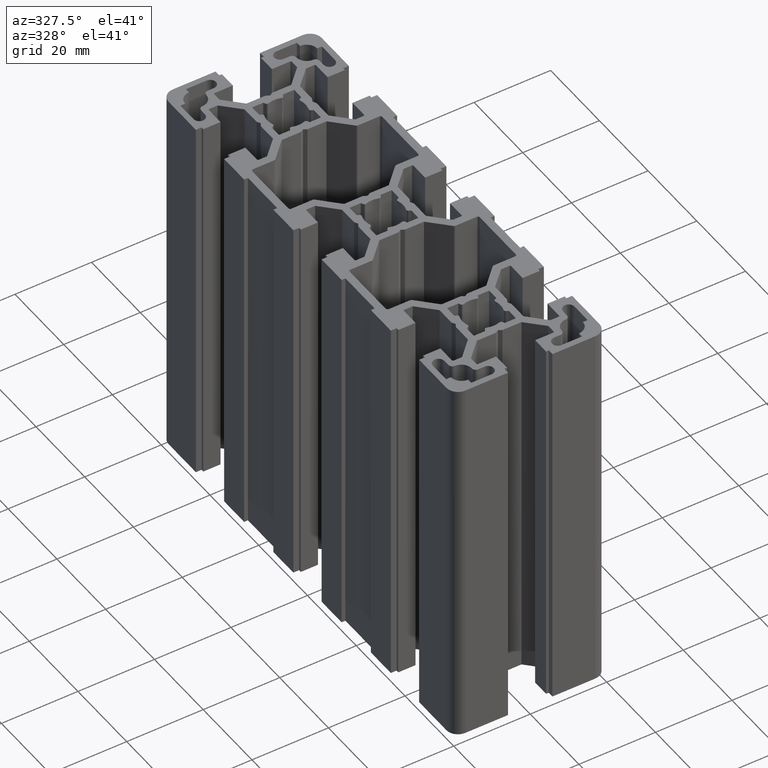
[diagram: clean part render]
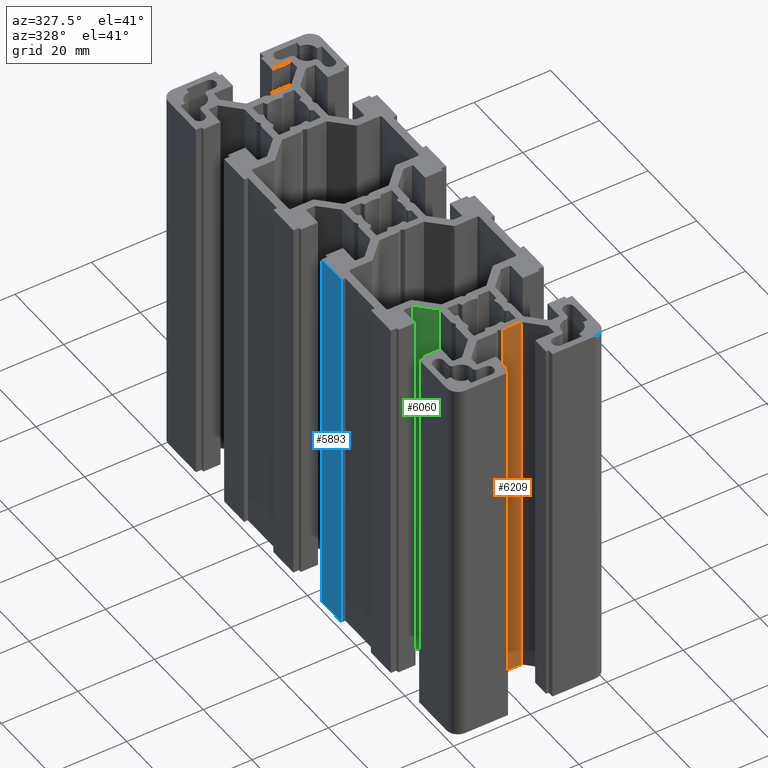
[diagram: same view with three faces highlighted in distinct colors, each labeled with its STEP entity id]
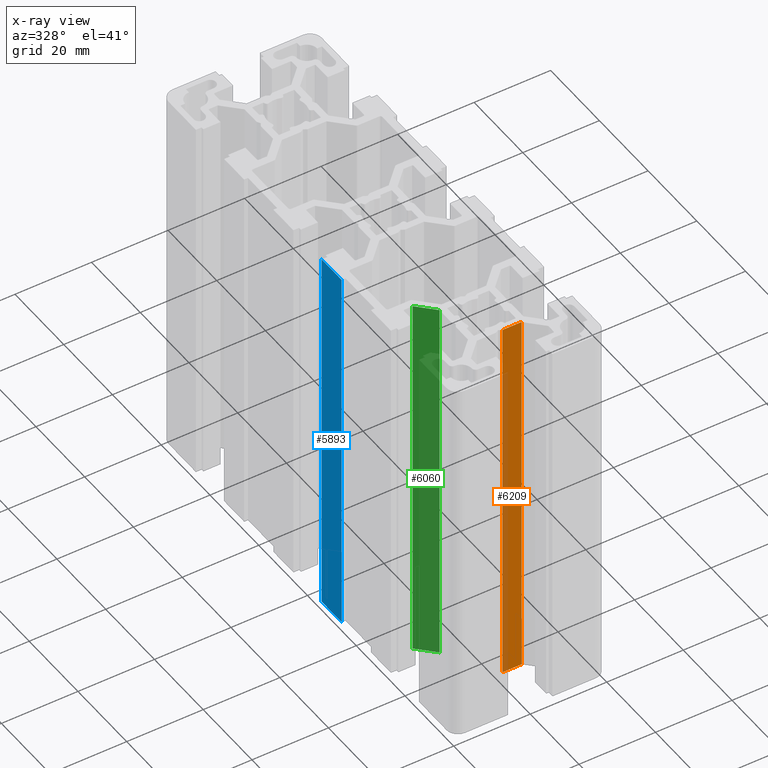
[diagram: x-ray of the same camera — body ghosted, the three highlighted faces saturated]
A machine part, auxiliary view with three faces highlighted in distinct colors.
The next image is the same camera in x-ray (body ghosted, the three faces saturated) — at least one of them is partly hidden behind the body in this view.
Their STEP definitions:

[orange] entity #6209 — the highlighted planar face has unit normal (0, 1, 0).
#145 = FACE_OUTER_BOUND ( 'NONE', #6219, .T. ) ;
#149 = CARTESIAN_POINT ( 'NONE',  ( 0.8660263574587678800, -47.25000000000000000, 100.0000000000000000 ) ) ;
#150 = LINE ( 'NONE', #149, #206 ) ;
#151 = PLANE ( 'NONE',  #190 ) ;
#187 = DIRECTION ( 'NONE',  ( 0.0000000000000000000, -0.0000000000000000000, 1.000000000000000000 ) ) ;
#188 = DIRECTION ( 'NONE',  ( 0.0000000000000000000, 1.000000000000000000, 0.0000000000000000000 ) ) ;
#189 = CARTESIAN_POINT ( 'NONE',  ( 0.8660263574587678800, -47.25000000000000000, 100.0000000000000000 ) ) ;
#190 = AXIS2_PLACEMENT_3D ( 'NONE', #189, #188, #187 ) ;
#195 = DIRECTION ( 'NONE',  ( -0.0000000000000000000, -0.0000000000000000000, -1.000000000000000000 ) ) ;
#196 = VECTOR ( 'NONE', #195, 1000.000000000000000 ) ;
#197 = CARTESIAN_POINT ( 'NONE',  ( 5.835786312549498000, -47.25000000000000000, 100.0000000000000000 ) ) ;
#198 = LINE ( 'NONE', #197, #196 ) ;
#205 = DIRECTION ( 'NONE',  ( -0.0000000000000000000, -0.0000000000000000000, -1.000000000000000000 ) ) ;
#206 = VECTOR ( 'NONE', #205, 1000.000000000000000 ) ;
#1373 = CARTESIAN_POINT ( 'NONE',  ( 5.835786312549498000, -47.25000000000000000, 100.0000000000000000 ) ) ;
#3219 = DIRECTION ( 'NONE',  ( 1.000000000000000000, 0.0000000000000000000, 0.0000000000000000000 ) ) ;
#3220 = VECTOR ( 'NONE', #3219, 1000.000000000000000 ) ;
#3221 = CARTESIAN_POINT ( 'NONE',  ( 0.8660263574587678800, -47.25000000000000000, 100.0000000000000000 ) ) ;
#3222 = LINE ( 'NONE', #3221, #3220 ) ;
#3264 = CARTESIAN_POINT ( 'NONE',  ( 0.8660263574587678800, -47.25000000000000000, 100.0000000000000000 ) ) ;
#4977 = VERTEX_POINT ( 'NONE', #10348 ) ;
#4981 = EDGE_CURVE ( 'NONE', #4977, #4989, #10262, .T. ) ;
#4989 = VERTEX_POINT ( 'NONE', #10100 ) ;
#6199 = EDGE_CURVE ( 'NONE', #12277, #4977, #150, .T. ) ;
#6207 = EDGE_CURVE ( 'NONE', #12267, #4989, #198, .T. ) ;
#6208 = ORIENTED_EDGE ( 'NONE', *, *, #6207, .F. ) ;
#6209 = ADVANCED_FACE ( 'NONE', ( #145 ), #151, .F. ) ;
#6210 = ORIENTED_EDGE ( 'NONE', *, *, #4981, .T. ) ;
#6212 = ORIENTED_EDGE ( 'NONE', *, *, #12261, .F. ) ;
#6219 = EDGE_LOOP ( 'NONE', ( #6210, #6208, #6212, #6259 ) ) ;
#6259 = ORIENTED_EDGE ( 'NONE', *, *, #6199, .T. ) ;
#10100 = CARTESIAN_POINT ( 'NONE',  ( 5.835786312549498000, -47.25000000000000000, 0.0000000000000000000 ) ) ;
#10262 = LINE ( 'NONE', #10344, #10343 ) ;
#10342 = DIRECTION ( 'NONE',  ( 1.000000000000000000, 0.0000000000000000000, 0.0000000000000000000 ) ) ;
#10343 = VECTOR ( 'NONE', #10342, 1000.000000000000000 ) ;
#10344 = CARTESIAN_POINT ( 'NONE',  ( 0.8660263574587678800, -47.25000000000000000, 0.0000000000000000000 ) ) ;
#10348 = CARTESIAN_POINT ( 'NONE',  ( 0.8660263574587678800, -47.25000000000000000, 0.0000000000000000000 ) ) ;
#12261 = EDGE_CURVE ( 'NONE', #12277, #12267, #3222, .T. ) ;
#12267 = VERTEX_POINT ( 'NONE', #1373 ) ;
#12277 = VERTEX_POINT ( 'NONE', #3264 ) ;

[blue] entity #5893 — the highlighted planar face has unit normal (1, 0, -0).
#4010 = VERTEX_POINT ( 'NONE', #8647 ) ;
#4034 = VERTEX_POINT ( 'NONE', #8658 ) ;
#4042 = EDGE_CURVE ( 'NONE', #4034, #4010, #8693, .T. ) ;
#5113 = VERTEX_POINT ( 'NONE', #10581 ) ;
#5114 = VERTEX_POINT ( 'NONE', #10577 ) ;
#5121 = EDGE_CURVE ( 'NONE', #5113, #5114, #10552, .T. ) ;
#5831 = EDGE_LOOP ( 'NONE', ( #5982, #5984, #5990, #5987 ) ) ;
#5893 = ADVANCED_FACE ( 'NONE', ( #11890 ), #11851, .F. ) ;
#5940 = EDGE_CURVE ( 'NONE', #4034, #5113, #11978, .T. ) ;
#5982 = ORIENTED_EDGE ( 'NONE', *, *, #5121, .T. ) ;
#5984 = ORIENTED_EDGE ( 'NONE', *, *, #5986, .F. ) ;
#5986 = EDGE_CURVE ( 'NONE', #4010, #5114, #12040, .T. ) ;
#5987 = ORIENTED_EDGE ( 'NONE', *, *, #5940, .T. ) ;
#5990 = ORIENTED_EDGE ( 'NONE', *, *, #4042, .F. ) ;
#8647 = CARTESIAN_POINT ( 'NONE',  ( -20.00000000000000000, -13.99999980926512000, 100.0000000000000000 ) ) ;
#8658 = CARTESIAN_POINT ( 'NONE',  ( -20.00000000000000000, -5.800000190734863300, 100.0000000000000000 ) ) ;
#8690 = DIRECTION ( 'NONE',  ( 0.0000000000000000000, -1.000000000000000000, 0.0000000000000000000 ) ) ;
#8691 = VECTOR ( 'NONE', #8690, 1000.000000000000000 ) ;
#8692 = CARTESIAN_POINT ( 'NONE',  ( -20.00000000000000000, -5.800000190734863300, 100.0000000000000000 ) ) ;
#8693 = LINE ( 'NONE', #8692, #8691 ) ;
#10549 = DIRECTION ( 'NONE',  ( 0.0000000000000000000, -1.000000000000000000, 0.0000000000000000000 ) ) ;
#10550 = VECTOR ( 'NONE', #10549, 1000.000000000000000 ) ;
#10551 = CARTESIAN_POINT ( 'NONE',  ( -20.00000000000000000, -5.800000190734863300, 0.0000000000000000000 ) ) ;
#10552 = LINE ( 'NONE', #10551, #10550 ) ;
#10577 = CARTESIAN_POINT ( 'NONE',  ( -20.00000000000000000, -13.99999980926512000, 0.0000000000000000000 ) ) ;
#10581 = CARTESIAN_POINT ( 'NONE',  ( -20.00000000000000000, -5.800000190734863300, 0.0000000000000000000 ) ) ;
#11851 = PLANE ( 'NONE',  #11883 ) ;
#11879 = DIRECTION ( 'NONE',  ( -0.0000000000000000000, 0.0000000000000000000, -1.000000000000000000 ) ) ;
#11880 = DIRECTION ( 'NONE',  ( 1.000000000000000000, 0.0000000000000000000, -0.0000000000000000000 ) ) ;
#11883 = AXIS2_PLACEMENT_3D ( 'NONE', #11889, #11880, #11879 ) ;
#11889 = CARTESIAN_POINT ( 'NONE',  ( -20.00000000000000000, -5.800000190734863300, 100.0000000000000000 ) ) ;
#11890 = FACE_OUTER_BOUND ( 'NONE', #5831, .T. ) ;
#11975 = DIRECTION ( 'NONE',  ( -0.0000000000000000000, -0.0000000000000000000, -1.000000000000000000 ) ) ;
#11976 = VECTOR ( 'NONE', #11975, 1000.000000000000000 ) ;
#11977 = CARTESIAN_POINT ( 'NONE',  ( -20.00000000000000000, -5.800000190734863300, 100.0000000000000000 ) ) ;
#11978 = LINE ( 'NONE', #11977, #11976 ) ;
#12028 = DIRECTION ( 'NONE',  ( -0.0000000000000000000, -0.0000000000000000000, -1.000000000000000000 ) ) ;
#12029 = VECTOR ( 'NONE', #12028, 1000.000000000000000 ) ;
#12036 = CARTESIAN_POINT ( 'NONE',  ( -20.00000000000000000, -13.99999980926512000, 100.0000000000000000 ) ) ;
#12040 = LINE ( 'NONE', #12036, #12029 ) ;

[green] entity #6060 — the highlighted planar face has unit normal (0.7071, 0.7071, -0).
#4058 = VERTEX_POINT ( 'NONE', #8740 ) ;
#4060 = VERTEX_POINT ( 'NONE', #8734 ) ;
#4076 = EDGE_CURVE ( 'NONE', #4060, #4058, #8727, .T. ) ;
#5058 = VERTEX_POINT ( 'NONE', #10438 ) ;
#5063 = EDGE_CURVE ( 'NONE', #5065, #5058, #10481, .T. ) ;
#5065 = VERTEX_POINT ( 'NONE', #10482 ) ;
#6005 = EDGE_LOOP ( 'NONE', ( #6043, #6059, #6045, #6044 ) ) ;
#6043 = ORIENTED_EDGE ( 'NONE', *, *, #5063, .T. ) ;
#6044 = ORIENTED_EDGE ( 'NONE', *, *, #6054, .T. ) ;
#6045 = ORIENTED_EDGE ( 'NONE', *, *, #4076, .F. ) ;
#6054 = EDGE_CURVE ( 'NONE', #4060, #5065, #12125, .T. ) ;
#6058 = EDGE_CURVE ( 'NONE', #4058, #5058, #12115, .T. ) ;
#6059 = ORIENTED_EDGE ( 'NONE', *, *, #6058, .F. ) ;
#6060 = ADVANCED_FACE ( 'NONE', ( #12126 ), #12121, .F. ) ;
#8726 = CARTESIAN_POINT ( 'NONE',  ( -7.249999999999996400, -34.16421368745051300, 100.0000000000000000 ) ) ;
#8727 = LINE ( 'NONE', #8726, #8769 ) ;
#8734 = CARTESIAN_POINT ( 'NONE',  ( -11.53921317152060900, -29.87500000000000400, 100.0000000000000000 ) ) ;
#8740 = CARTESIAN_POINT ( 'NONE',  ( -7.249999999999996400, -34.16421368745051300, 100.0000000000000000 ) ) ;
#8768 = DIRECTION ( 'NONE',  ( 0.7071067386592234700, -0.7071068237138690100, -0.0000000000000000000 ) ) ;
#8769 = VECTOR ( 'NONE', #8768, 1000.000000000000000 ) ;
#10438 = CARTESIAN_POINT ( 'NONE',  ( -7.249999999999996400, -34.16421368745051300, 0.0000000000000000000 ) ) ;
#10478 = DIRECTION ( 'NONE',  ( 0.7071067386592234700, -0.7071068237138690100, -0.0000000000000000000 ) ) ;
#10479 = VECTOR ( 'NONE', #10478, 1000.000000000000000 ) ;
#10480 = CARTESIAN_POINT ( 'NONE',  ( -7.249999999999996400, -34.16421368745051300, 0.0000000000000000000 ) ) ;
#10481 = LINE ( 'NONE', #10480, #10479 ) ;
#10482 = CARTESIAN_POINT ( 'NONE',  ( -11.53921317152060900, -29.87500000000000400, 0.0000000000000000000 ) ) ;
#12103 = DIRECTION ( 'NONE',  ( -0.7071067386592234700, 0.7071068237138690100, 0.0000000000000000000 ) ) ;
#12104 = DIRECTION ( 'NONE',  ( 0.7071068237138690100, 0.7071067386592234700, -0.0000000000000000000 ) ) ;
#12105 = CARTESIAN_POINT ( 'NONE',  ( -7.249999999999996400, -34.16421368745051300, 100.0000000000000000 ) ) ;
#12110 = AXIS2_PLACEMENT_3D ( 'NONE', #12105, #12104, #12103 ) ;
#12112 = DIRECTION ( 'NONE',  ( -0.0000000000000000000, -0.0000000000000000000, -1.000000000000000000 ) ) ;
#12113 = VECTOR ( 'NONE', #12112, 1000.000000000000000 ) ;
#12114 = CARTESIAN_POINT ( 'NONE',  ( -7.249999999999996400, -34.16421368745051300, 100.0000000000000000 ) ) ;
#12115 = LINE ( 'NONE', #12114, #12113 ) ;
#12117 = DIRECTION ( 'NONE',  ( -0.0000000000000000000, -0.0000000000000000000, -1.000000000000000000 ) ) ;
#12118 = VECTOR ( 'NONE', #12117, 1000.000000000000000 ) ;
#12119 = CARTESIAN_POINT ( 'NONE',  ( -11.53921317152060900, -29.87500000000000400, 100.0000000000000000 ) ) ;
#12121 = PLANE ( 'NONE',  #12110 ) ;
#12125 = LINE ( 'NONE', #12119, #12118 ) ;
#12126 = FACE_OUTER_BOUND ( 'NONE', #6005, .T. ) ;